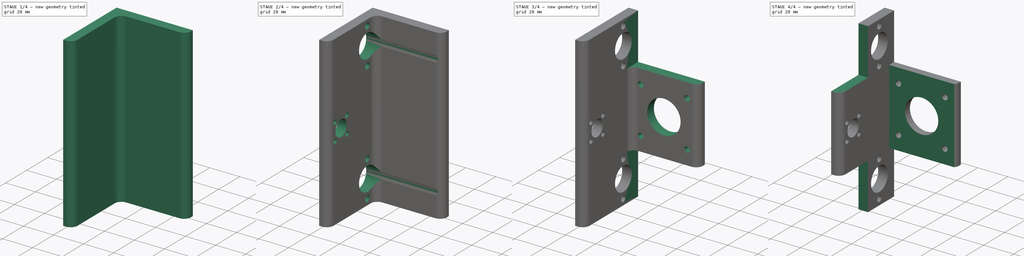
[diagram: build sequence overview — one tinted view per stage of 4, left to right]
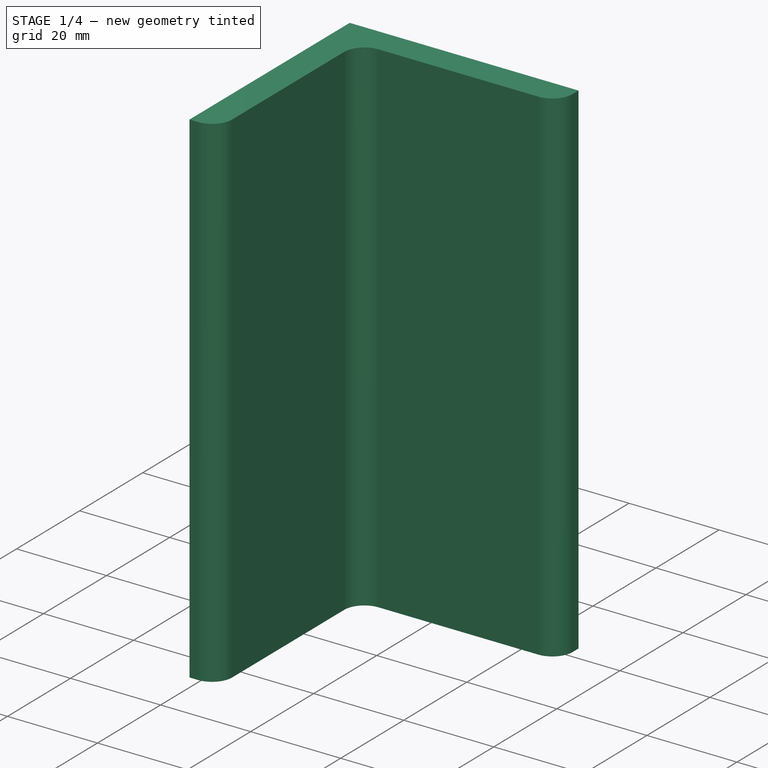
[diagram: stage 1 of 4 — iso view after this stage's code; geometry added in this stage tinted green]
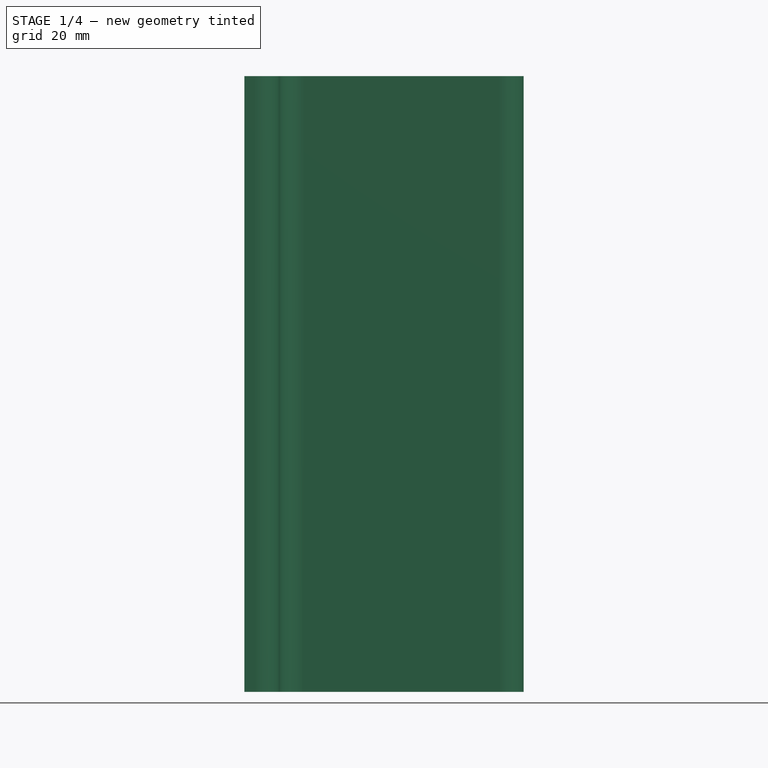
[diagram: stage 1 of 4 — front view after this stage's code; geometry added in this stage tinted green]
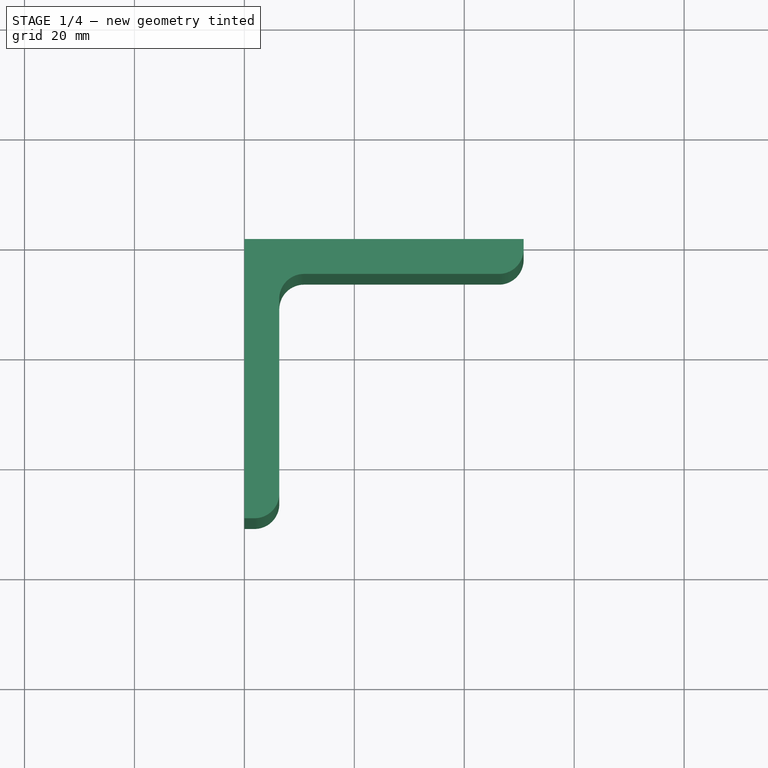
[diagram: stage 1 of 4 — top view after this stage's code; geometry added in this stage tinted green]
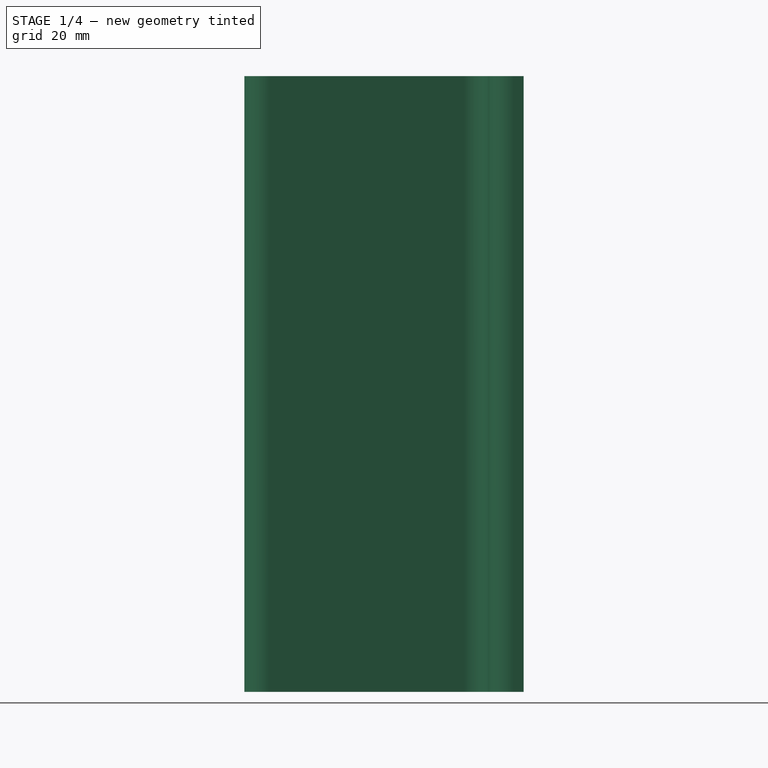
[diagram: stage 1 of 4 — right view after this stage's code; geometry added in this stage tinted green]
FCSTD DOCUMENT  (FreeCAD 0.19R)
Label: angle_machined_2in_25
License: All rights reserved
LicenseURL: http://en.wikipedia.org/wiki/All_rights_reserved
objects: Sketcher::SketchObject×7, PartDesign::CoordinateSystem×7, PartDesign::Pocket×6, PartDesign::Pad×2, PartDesign::Mirrored×2, PartDesign::Fillet×1, PartDesign::LinearPattern×1, PartDesign::Body×1
note: 36 computed .brp shape members not serialized (recipe doc carries the construction recipe); baked Part::Feature solids carry a one-line shape summary decoded from their .brp

FEATURE [Sketcher::SketchObject] Sketch
  FullyConstrained = true
  MapMode = 5
  Support = -> [XY_Plane]
  sketch-geometry (6):
    g0: LineSegment StartX=0 StartY=0 StartZ=0 EndX=50.8 EndY=0 EndZ=0
    g1: LineSegment StartX=50.8 StartY=0 StartZ=0 EndX=50.8 EndY=-6.35 EndZ=0
    g2: LineSegment StartX=50.8 StartY=-6.35 StartZ=0 EndX=6.35 EndY=-6.35 EndZ=0
    g3: LineSegment StartX=6.35 StartY=-6.35 StartZ=0 EndX=6.35 EndY=-50.8 EndZ=0
    g4: LineSegment StartX=6.35 StartY=-50.8 StartZ=0 EndX=0 EndY=-50.8 EndZ=0
    g5: LineSegment StartX=0 StartY=-50.8 StartZ=0 EndX=0 EndY=0 EndZ=0
  constraints (17):
    c: Coincident(g-1,g0)
    c: PointOnObject(g0,g-1)
    c: Coincident(g0,g1)
    c: Vertical(g1)
    c: Coincident(g1,g2)
    c: Horizontal(g2)
    c: Coincident(g2,g3)
    c: Vertical(g3)
    c: Coincident(g3,g4)
    c: PointOnObject(g4,g-2)
    c: Horizontal(g4)
    c: Coincident(g4,g5)
    c: Coincident(g5,g0)
    c: Equal(g1,g4)
    c: DistanceY(g1,g1) = 6.35
    c: DistanceX(g0,g0) = 50.8
    c: Equal(g0,g5)
FEATURE [PartDesign::Pad] Pad
  Direction = (1,1,1)
  Length = 56
  Length2 = 100
  Profile = -> Sketch
  Refine = true
  Reversed = true
  Type = 0
FEATURE [Sketcher::SketchObject] Sketch001
  FullyConstrained = true
  MapMode = 5
  Placement = pos=(0,0,0) rot=(0.57735,0.57735,0.57735;2.0944rad)
  Support = -> [YZ_Plane]
  sketch-geometry (3):
    g0: Circle CenterX=-14 CenterY=-40 CenterZ=0 NormalX=0 NormalY=0 NormalZ=1 AngleXU=0 Radius=7.9375
    g1: Circle CenterX=-14 CenterY=-28 CenterZ=0 NormalX=0 NormalY=0 NormalZ=1 AngleXU=0 Radius=2
    g2: Circle CenterX=-14 CenterY=-52 CenterZ=0 NormalX=0 NormalY=0 NormalZ=1 AngleXU=0 Radius=2
  constraints (8):
    c: Diameter(g0) = 15.875
    c: Diameter(g1) = 4
    c: Equal(g1,g2)
    c: Symmetric(g1,g2,g0)
    c: Vertical(g1,g0)
    c: Distance(g1,g2) = 24
    c: DistanceX(g0,g-1) = 14
    c: DistanceY(g0,g-1) = 40
FEATURE [Sketcher::SketchObject] Sketch002
  FullyConstrained = true
  MapMode = 5
  Placement = pos=(0,0,0) rot=(0.57735,0.57735,0.57735;2.0944rad)
  Support = -> [YZ_Plane]
  sketch-geometry (8):
    g0: Circle CenterX=-39 CenterY=0 CenterZ=0 NormalX=0 NormalY=0 NormalZ=1 AngleXU=0 Radius=5.35781
    g1: Circle CenterX=-39 CenterY=0 CenterZ=0 NormalX=0 NormalY=0 NormalZ=1 AngleXU=0 Radius=8
    g2: Circle CenterX=-44.6569 CenterY=5.65685 CenterZ=0 NormalX=0 NormalY=0 NormalZ=1 AngleXU=0 Radius=1.5875
    g3: Circle CenterX=-33.3431 CenterY=5.65685 CenterZ=0 NormalX=0 NormalY=0 NormalZ=1 AngleXU=0 Radius=1.5875
    g4: Circle CenterX=-33.3431 CenterY=-5.65685 CenterZ=0 NormalX=0 NormalY=0 NormalZ=1 AngleXU=0 Radius=1.5875
    g5: Circle CenterX=-44.6569 CenterY=-5.65685 CenterZ=0 NormalX=0 NormalY=0 NormalZ=1 AngleXU=0 Radius=1.5875
    g6: LineSegment StartX=-44.6569 StartY=5.65685 StartZ=0 EndX=-33.3431 EndY=5.65685 EndZ=0
    g7: LineSegment StartX=-33.3431 StartY=5.65685 StartZ=0 EndX=-33.3431 EndY=-5.65685 EndZ=0
  constraints (19):
    c: Diameter(g0) = 10.7156
    c: Horizontal(g0,g-1)
    c: Coincident(g1,g0)
    c: Diameter(g1) = 16
    c: PointOnObject(g2,g1)
    c: PointOnObject(g3,g1)
    c: Equal(g2,g3)
    c: Equal(g3,g4)
    c: Equal(g4,g5)
    c: Symmetric(g2,g4,g0)
    c: Symmetric(g3,g5,g0)
    c: Horizontal(g3,g2)
    c: DistanceX(g0,g-1) = 39
    c: Coincident(g6,g2)
    c: Coincident(g6,g3)
    c: Coincident(g7,g3)
    c: Coincident(g7,g4)
    c: Equal(g6,g7)
    c: Diameter(g3) = 3.175
FEATURE [Sketcher::SketchObject] Sketch003
  FullyConstrained = true
  MapMode = 5
  Placement = pos=(0,0,0) rot=(1,0,0;1.5708rad)
  Support = -> [XZ_Plane]
  sketch-geometry (4):
    g0: LineSegment StartX=6.35 StartY=76.1187 StartZ=0 EndX=66.35 EndY=76.1187 EndZ=0
    g1: LineSegment StartX=66.35 StartY=76.1187 StartZ=0 EndX=66.35 EndY=25 EndZ=0
    g2: LineSegment StartX=66.35 StartY=25 StartZ=0 EndX=6.35 EndY=25 EndZ=0
    g3: LineSegment StartX=6.35 StartY=25 StartZ=0 EndX=6.35 EndY=76.1187 EndZ=0
  constraints (12):
    c: Coincident(g0,g1)
    c: Coincident(g1,g2)
    c: Coincident(g2,g3)
    c: Coincident(g3,g0)
    c: Horizontal(g0)
    c: Horizontal(g2)
    c: Vertical(g1)
    c: Vertical(g3)
    c: DistanceY(g3,g3) = 51.1187
    c: DistanceY(g-1,g2) = 25
    c: DistanceX(g0,g0) = 60
    c: DistanceX(g-1,g0) = 6.35
FEATURE [Sketcher::SketchObject] Sketch004
  FullyConstrained = true
  MapMode = 5
  Placement = pos=(0,0,0) rot=(1,0,0;1.5708rad)
  Support = -> [XZ_Plane]
  sketch-geometry (7):
    g0: Circle CenterX=43.5 CenterY=15.5 CenterZ=0 NormalX=0 NormalY=0 NormalZ=1 AngleXU=0 Radius=1.865
    g1: Circle CenterX=43.5 CenterY=-15.5 CenterZ=0 NormalX=0 NormalY=0 NormalZ=1 AngleXU=0 Radius=1.865
    g2: Circle CenterX=12.5 CenterY=15.5 CenterZ=0 NormalX=0 NormalY=0 NormalZ=1 AngleXU=0 Radius=1.865
    g3: Circle CenterX=12.5 CenterY=-15.5 CenterZ=0 NormalX=0 NormalY=0 NormalZ=1 AngleXU=0 Radius=1.865
    g4: LineSegment StartX=0 StartY=0 StartZ=0 EndX=-20.31 EndY=0 EndZ=0
    g5: LineSegment StartX=28 StartY=0 StartZ=0 EndX=28 EndY=70 EndZ=0
    g6: Circle CenterX=28 CenterY=0 CenterZ=0 NormalX=0 NormalY=0 NormalZ=1 AngleXU=0 Radius=11.1125
  constraints (18):
    c: Horizontal(g4)
    c: Coincident(g4,g-1)
    c: Distance(g4) = 20.31
    c: Vertical(g5)
    c: Horizontal(g5,g-1)
    c: Symmetric(g2,g0,g5)
    c: Symmetric(g2,g3,g4)
    c: Symmetric(g0,g1,g4)
    c: DistanceX(g2,g0) = 31
    c: Equal(g2,g0)
    c: Equal(g1,g0)
    c: Equal(g1,g3)
    c: Diameter(g0) = 3.73
    c: DistanceY(g1,g0) = 31
    c: DistanceX(g-1,g5) = 28  'motor_x'
    c: DistanceY(g5,g5) = 70
    c: Coincident(g6,g5)
    c: Diameter(g6) = 22.225
FEATURE [PartDesign::Pad] Pad001
  BaseFeature = -> Pad
  Direction = (1,1,1)
  Length = 56
  Length2 = 100
  Profile = -> Sketch
  Refine = true
  Type = 0
FEATURE [PartDesign::Fillet] Fillet
  Base = -> Pad001 [Edge17,Edge18,Edge16]
  BaseFeature = -> Pad001
  Radius = 4.5
  Refine = true
  SupportTransform = false
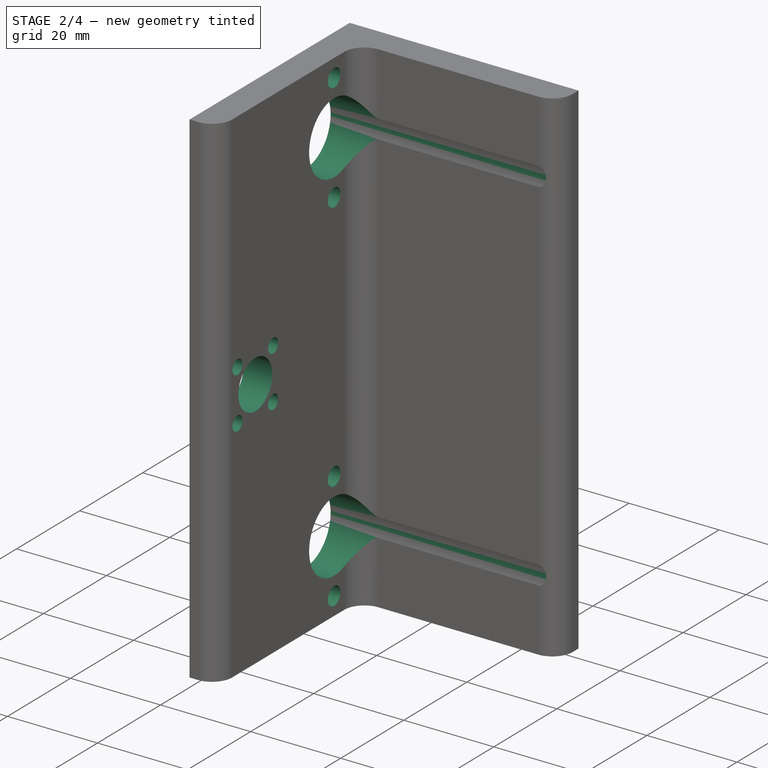
[diagram: stage 2 of 4 — iso view after this stage's code; geometry added in this stage tinted green]
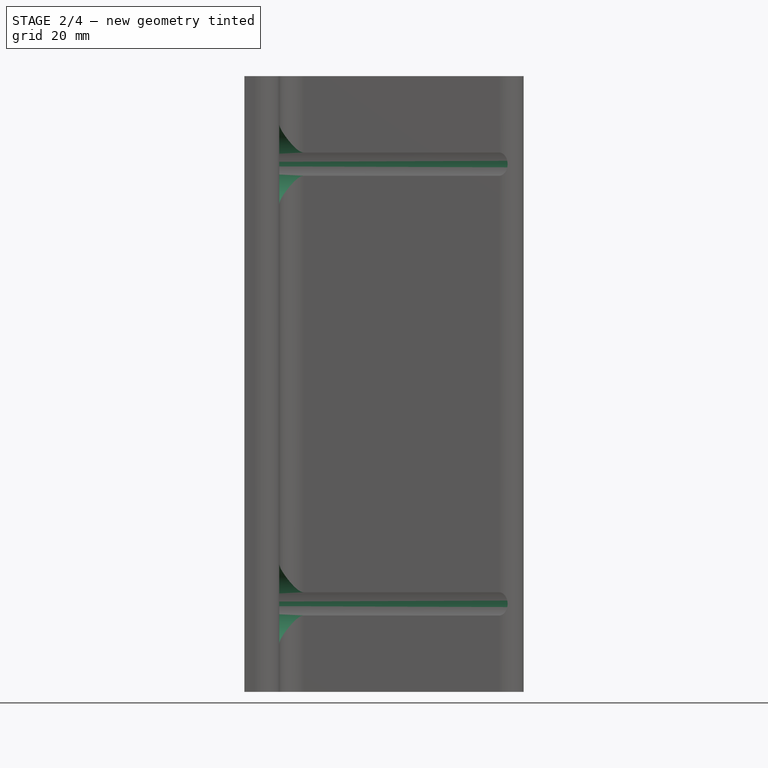
[diagram: stage 2 of 4 — front view after this stage's code; geometry added in this stage tinted green]
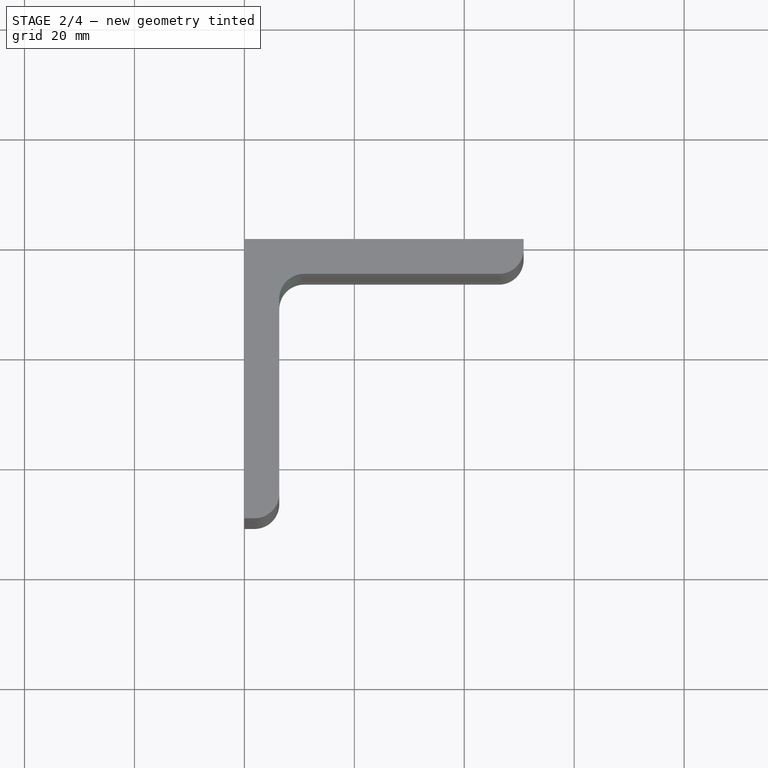
[diagram: stage 2 of 4 — top view after this stage's code; geometry added in this stage tinted green]
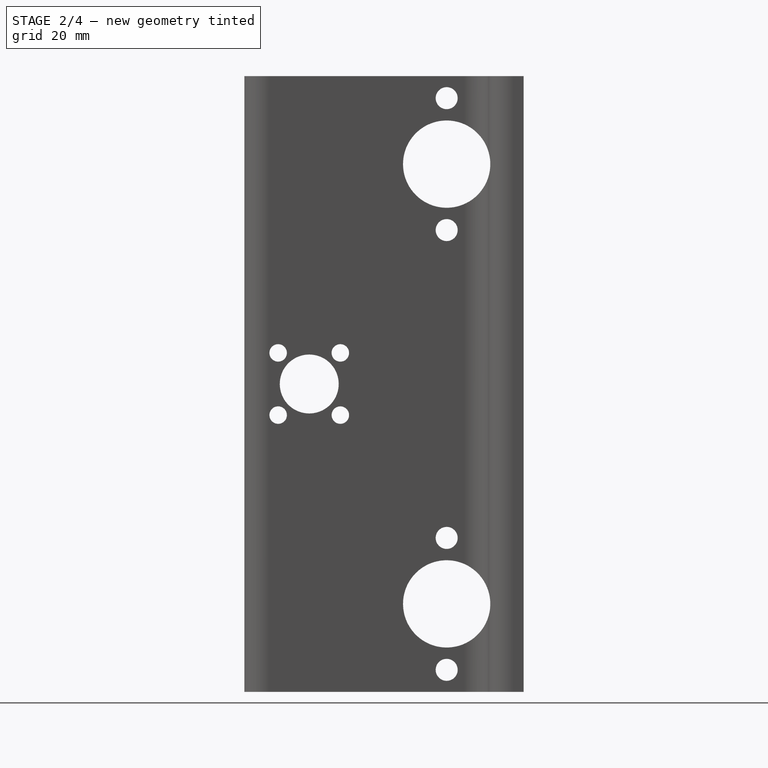
[diagram: stage 2 of 4 — right view after this stage's code; geometry added in this stage tinted green]
FEATURE [PartDesign::Pocket] Pocket  label="top_bearing"
  BaseFeature = -> Fillet
  Length = 20
  Length2 = 100
  Profile = -> Sketch001
  Refine = true
  Reversed = true
  Type = 1
FEATURE [PartDesign::LinearPattern] LinearPattern  label="LinearPattern_lower_bearing"
  BaseFeature = -> Pocket
  Direction = -> Sketch001 [V_Axis]
  Length = 80
  Occurrences = 2
  Originals = -> [Pocket]
  Refine = true
FEATURE [PartDesign::Pocket] Pocket001  label="nut_pocket"
  BaseFeature = -> LinearPattern
  Length = 5
  Length2 = 100
  Midplane = true
  Profile = -> Sketch002
  Refine = true
  Reversed = true
  Type = 1
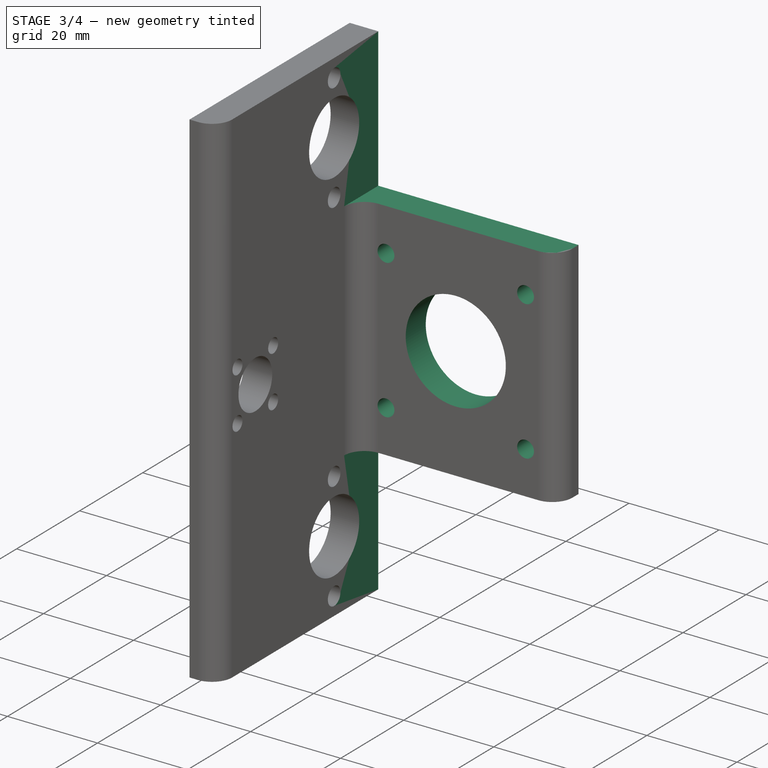
[diagram: stage 3 of 4 — iso view after this stage's code; geometry added in this stage tinted green]
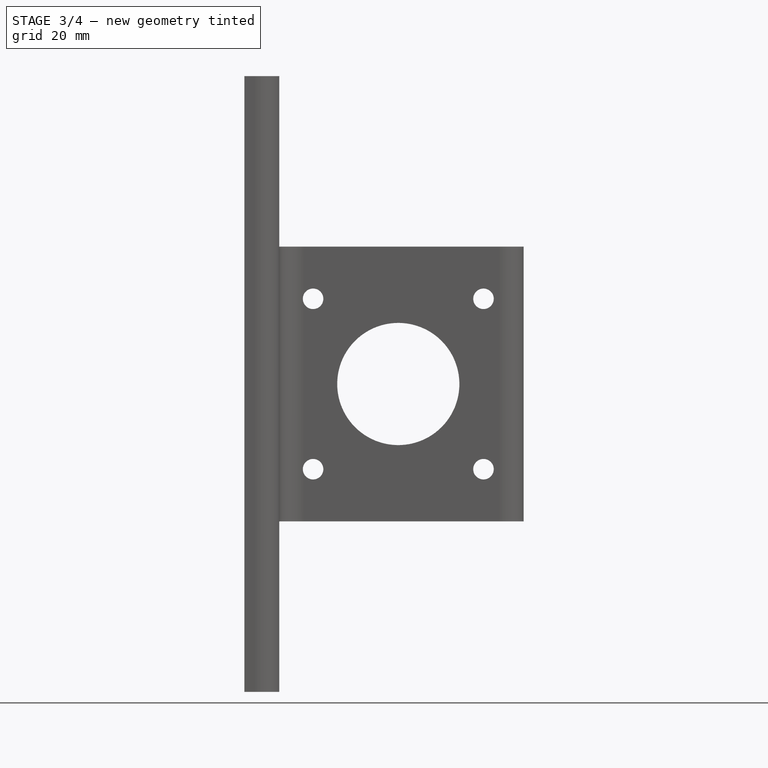
[diagram: stage 3 of 4 — front view after this stage's code; geometry added in this stage tinted green]
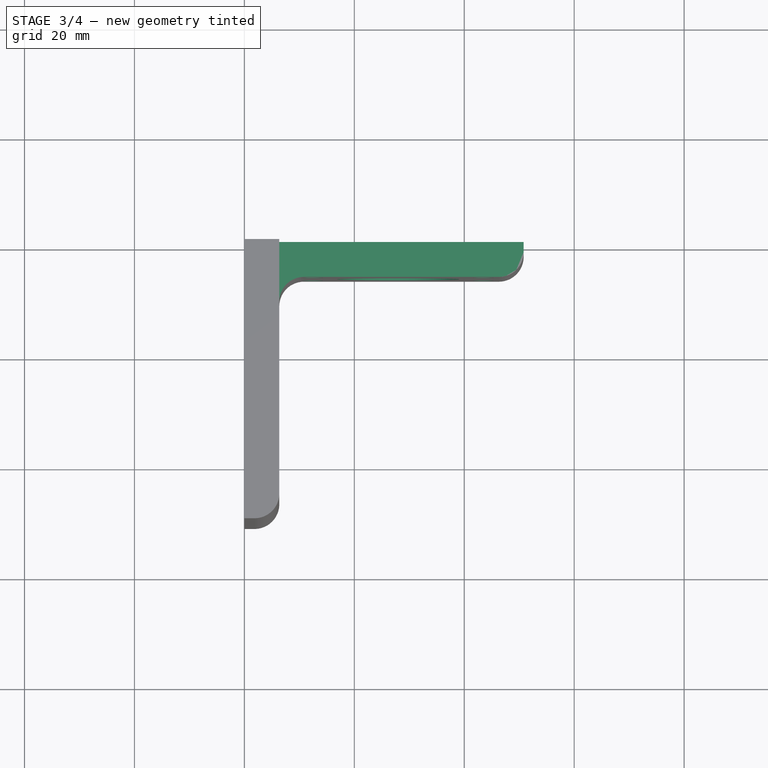
[diagram: stage 3 of 4 — top view after this stage's code; geometry added in this stage tinted green]
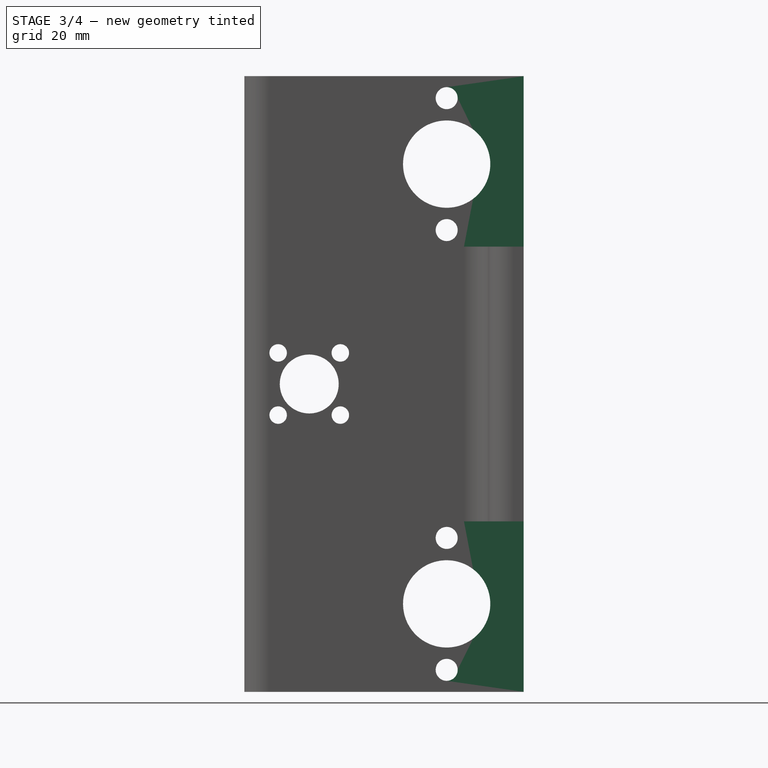
[diagram: stage 3 of 4 — right view after this stage's code; geometry added in this stage tinted green]
FEATURE [PartDesign::Pocket] Pocket002
  BaseFeature = -> Pocket001
  Length = 5
  Length2 = 100
  Midplane = true
  Profile = -> Sketch003
  Refine = true
  Type = 1
FEATURE [PartDesign::Mirrored] Mirrored001
  BaseFeature = -> Pocket002
  MirrorPlane = -> Sketch003 [H_Axis]
  Originals = -> [Pocket002]
  Refine = true
FEATURE [PartDesign::Pocket] Pocket003
  BaseFeature = -> Mirrored001
  Length = 5
  Length2 = 100
  Midplane = true
  Profile = -> Sketch004
  Type = 1
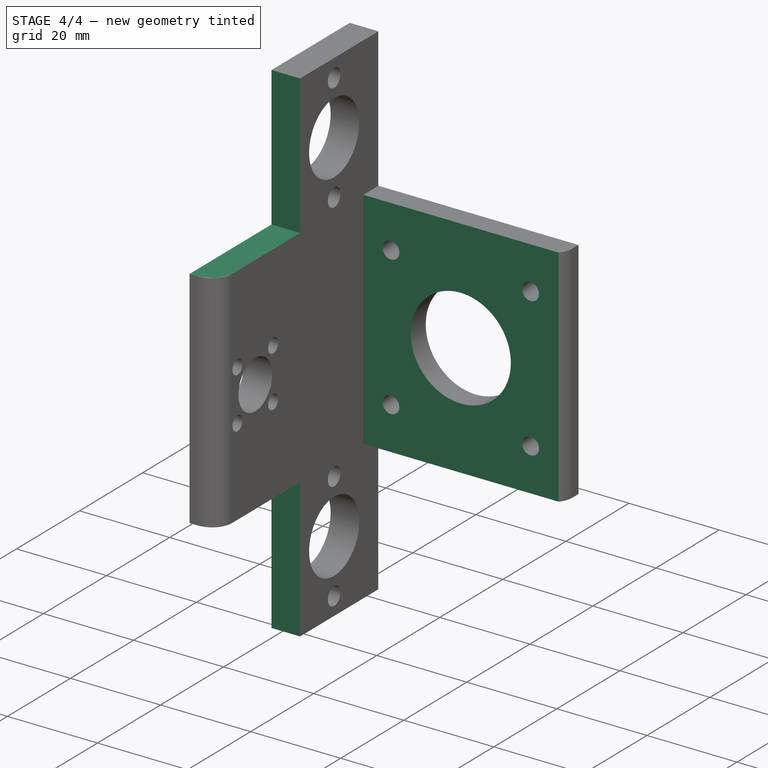
[diagram: stage 4 of 4 — iso view after this stage's code; geometry added in this stage tinted green]
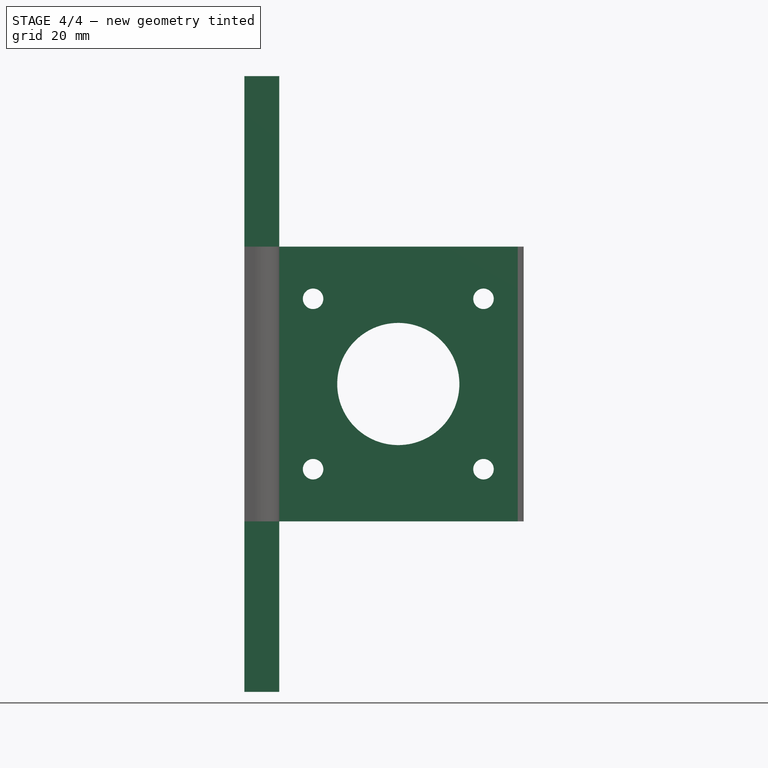
[diagram: stage 4 of 4 — front view after this stage's code; geometry added in this stage tinted green]
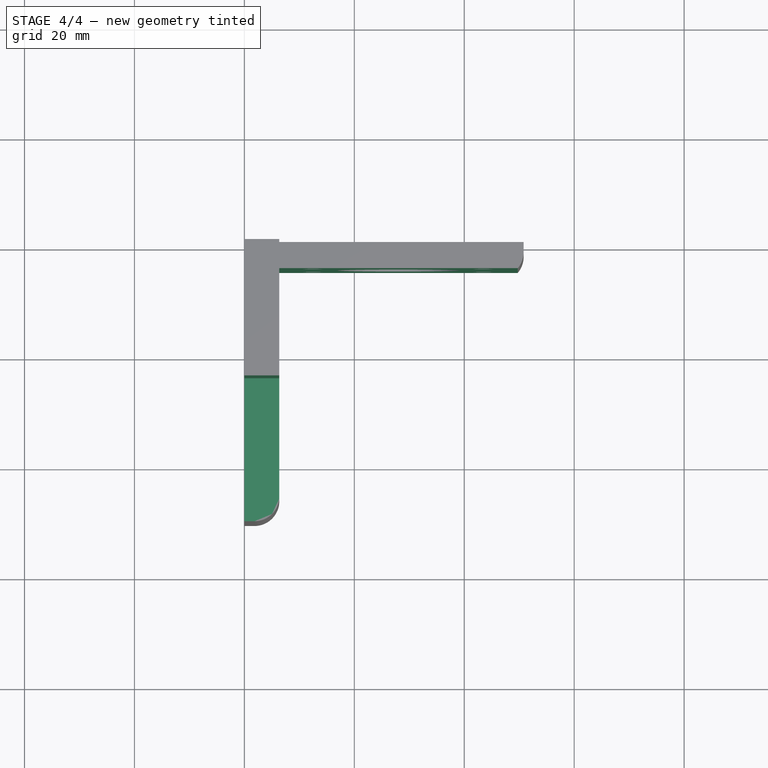
[diagram: stage 4 of 4 — top view after this stage's code; geometry added in this stage tinted green]
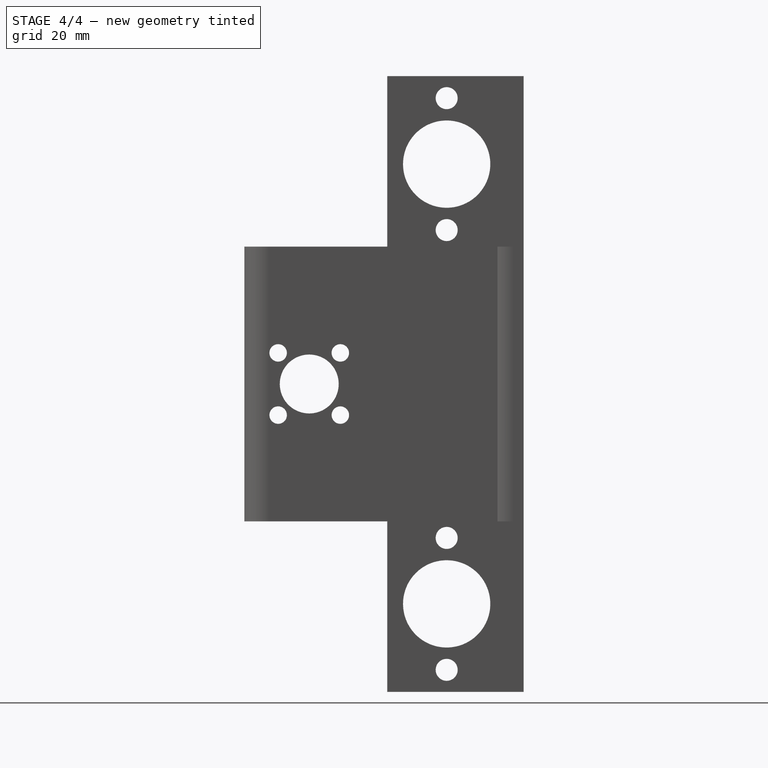
[diagram: stage 4 of 4 — right view after this stage's code; geometry added in this stage tinted green]
FEATURE [Sketcher::SketchObject] Sketch005
  FullyConstrained = true
  MapMode = 5
  Support = -> [XY_Plane]
  sketch-geometry (4):
    g0: LineSegment StartX=6.35 StartY=-4.7625 StartZ=0 EndX=66.35 EndY=-4.7625 EndZ=0
    g1: LineSegment StartX=66.35 StartY=-4.7625 StartZ=0 EndX=66.35 EndY=-17.0125 EndZ=0
    g2: LineSegment StartX=66.35 StartY=-17.0125 StartZ=0 EndX=6.35 EndY=-17.0125 EndZ=0
    g3: LineSegment StartX=6.35 StartY=-17.0125 StartZ=0 EndX=6.35 EndY=-4.7625 EndZ=0
  constraints (12):
    c: Coincident(g0,g1)
    c: Coincident(g1,g2)
    c: Coincident(g2,g3)
    c: Coincident(g3,g0)
    c: Horizontal(g0)
    c: Horizontal(g2)
    c: Vertical(g1)
    c: Vertical(g3)
    c: DistanceY(g1,g1) = 12.25
    c: DistanceX(g0,g0) = 60
    c: DistanceX(g-1,g0) = 6.35
    c: DistanceY(g0,g-1) = 4.7625
FEATURE [PartDesign::Pocket] Pocket004
  BaseFeature = -> Pocket003
  Length = 5
  Length2 = 100
  Midplane = true
  Profile = -> Sketch005
  Refine = true
  Type = 1
FEATURE [PartDesign::CoordinateSystem] Local_CS001  label="bearing_top"
  AttacherType = Attacher::AttachEngine3D
  MapMode = 11
  Placement = pos=(0,-14,-40) rot=(0.707107,0,0.707107;3.14159rad)
  Support = -> [Pocket004]
FEATURE [PartDesign::CoordinateSystem] Local_CS002  label="bearing_bottom"
  AttacherType = Attacher::AttachEngine3D
  MapMode = 11
  Placement = pos=(-1.8e-14,-14,40) rot=(0.707107,0,0.707107;3.14159rad)
  Support = -> [Pocket004]
FEATURE [PartDesign::CoordinateSystem] Local_CS003  label="nut"
  AttacherType = Attacher::AttachEngine3D
  AttachmentOffset = pos=(0,0,0) rot=(0,1,0;3.14159rad)
  MapMode = 11
  Placement = pos=(0,-44.6569,5.65685) rot=(-0.707107,0,0.707107;3.14159rad)
  Support = -> [Pocket004]
FEATURE [PartDesign::CoordinateSystem] Local_CS004  label="extruder"
  AttacherType = Attacher::AttachEngine3D
  MapMode = 11
  Placement = pos=(28,0,0) rot=(0.57735,-0.57735,0.57735;2.0944rad)
  Support = -> [Pocket004]
FEATURE [PartDesign::CoordinateSystem] Local_CS006  label="lcs_nut"
  AttacherType = Attacher::AttachEngine3D
  MapMode = 11
  Placement = pos=(0,-39,1.61e-14) rot=(0.707107,0,0.707107;3.14159rad)
  Support = -> [Pocket004]
FEATURE [Sketcher::SketchObject] Sketch006
  FullyConstrained = true
  MapMode = 5
  Placement = pos=(0,0,0) rot=(0.57735,0.57735,0.57735;2.0944rad)
  Support = -> [YZ_Plane]
  sketch-geometry (4):
    g0: LineSegment StartX=-62.1666 StartY=69.7638 StartZ=0 EndX=-24.8 EndY=69.7638 EndZ=0
    g1: LineSegment StartX=-24.8 StartY=69.7638 StartZ=0 EndX=-24.8 EndY=25 EndZ=0
    g2: LineSegment StartX=-24.8 StartY=25 StartZ=0 EndX=-62.1666 EndY=25 EndZ=0
    g3: LineSegment StartX=-62.1666 StartY=25 StartZ=0 EndX=-62.1666 EndY=69.7638 EndZ=0
  constraints (12):
    c: Coincident(g0,g1)
    c: Coincident(g1,g2)
    c: Coincident(g2,g3)
    c: Coincident(g3,g0)
    c: Horizontal(g0)
    c: Horizontal(g2)
    c: Vertical(g1)
    c: Vertical(g3)
    c: DistanceX(g0,g-1) = 24.8
    c: DistanceY(g-1,g1) = 25
    c: DistanceX(g2,g2) = 37.3666
    c: DistanceY(g3,g3) = 44.7638
FEATURE [PartDesign::Pocket] Pocket005
  BaseFeature = -> Pocket004
  Length = 5
  Length2 = 100
  Midplane = true
  Profile = -> Sketch006
  Refine = true
  Type = 1
FEATURE [PartDesign::Mirrored] Mirrored
  BaseFeature = -> Pocket005
  MirrorPlane = -> Sketch006 [H_Axis]
  Originals = -> [Pocket005]
  Refine = true
FEATURE [PartDesign::CoordinateSystem] Local_CS  label="motor_extruder"
  AttacherType = Attacher::AttachEngine3D
  MapMode = 11
  Placement = pos=(28,-4.7625,-1.1e-15) rot=(0.57735,-0.57735,0.57735;2.0944rad)
  Support = -> [Mirrored]
FEATURE [PartDesign::CoordinateSystem] Local_CS005  label="lcs_top_screw"
  AttacherType = Attacher::AttachEngine3D
  MapMode = 11
  Placement = pos=(6.35,-14,-52) rot=(0.707107,0,-0.707107;3.14159rad)
  Support = -> [Mirrored]
FEATURE [PartDesign::Body] Body
  Group = -> [Sketch,Pad,Pad001,Sketch001,Fillet,Pocket,Sketch002,LinearPattern,Pocket001,Sketch003,Pocket002,Mirrored001,Sketch004,Pocket003,Local_CS001,Local_CS002,Local_CS003,Sketch005,Pocket004,Local_CS,Local_CS004,Local_CS005,Local_CS006,Sketch006,Pocket005,Mirrored]
  Origin = -> Origin
  Tip = -> Mirrored
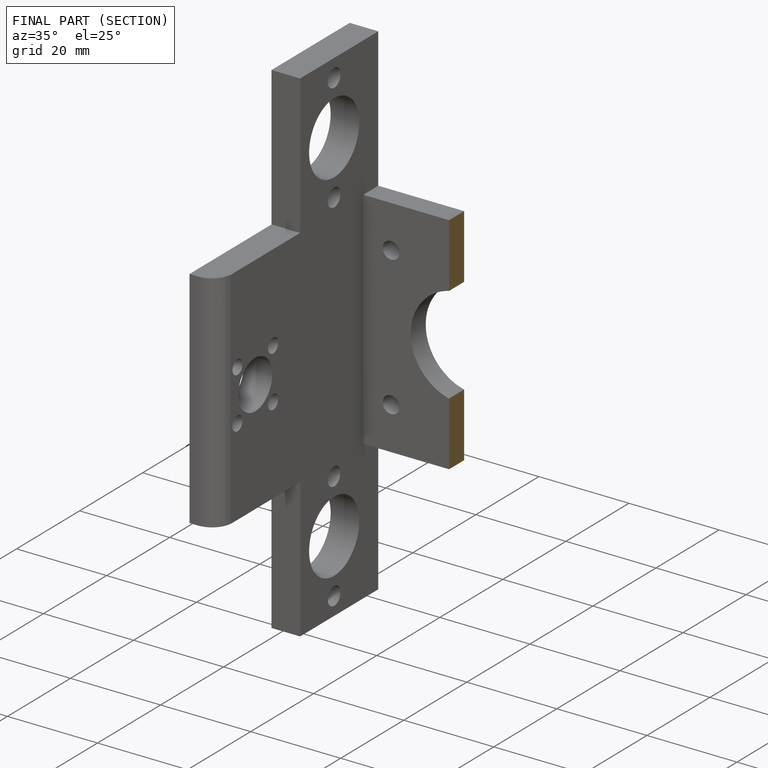
[diagram: finished part — half-section view (interior)]
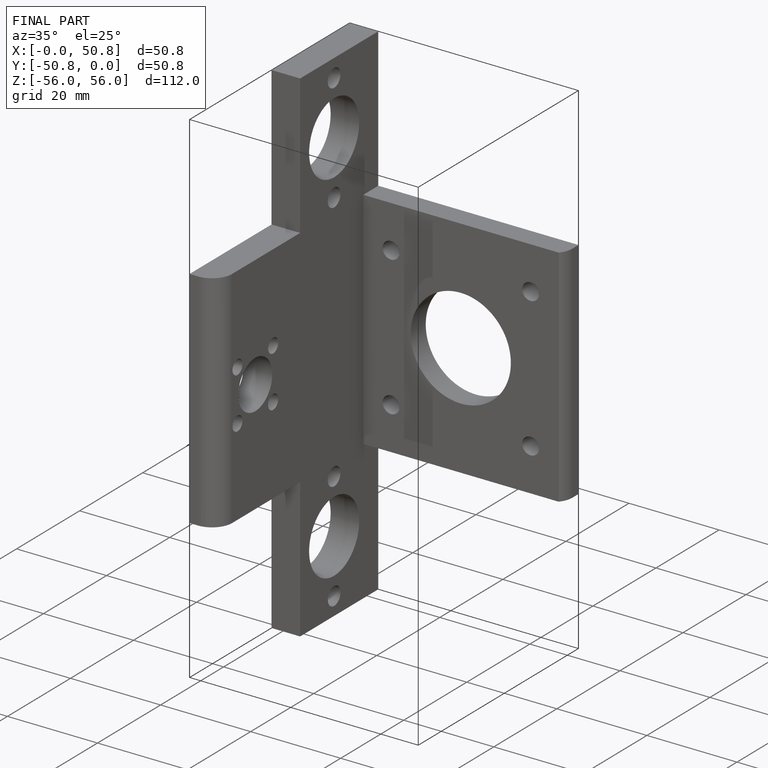
[diagram: finished part — iso view with bounding-box wireframe]
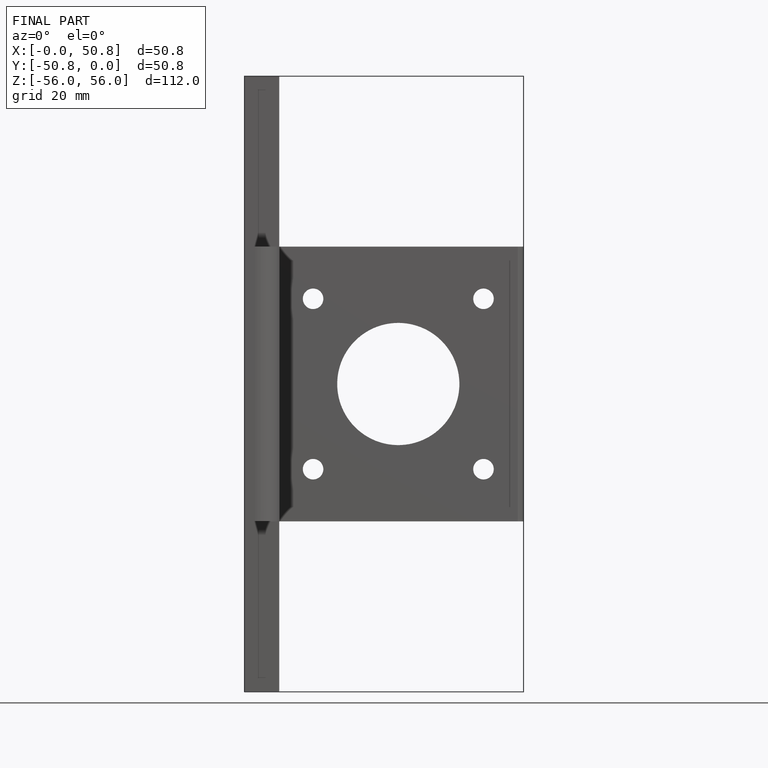
[diagram: finished part — front view with bounding-box wireframe]
